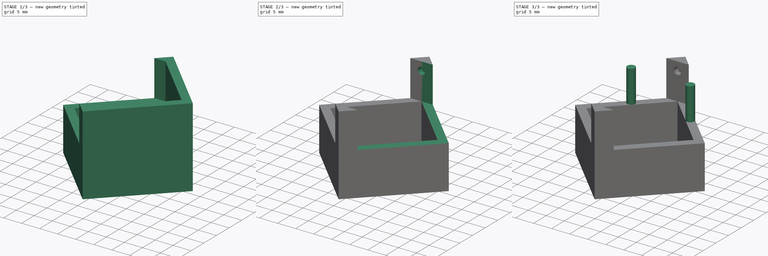
[diagram: build sequence overview — one tinted view per stage of 3, left to right]
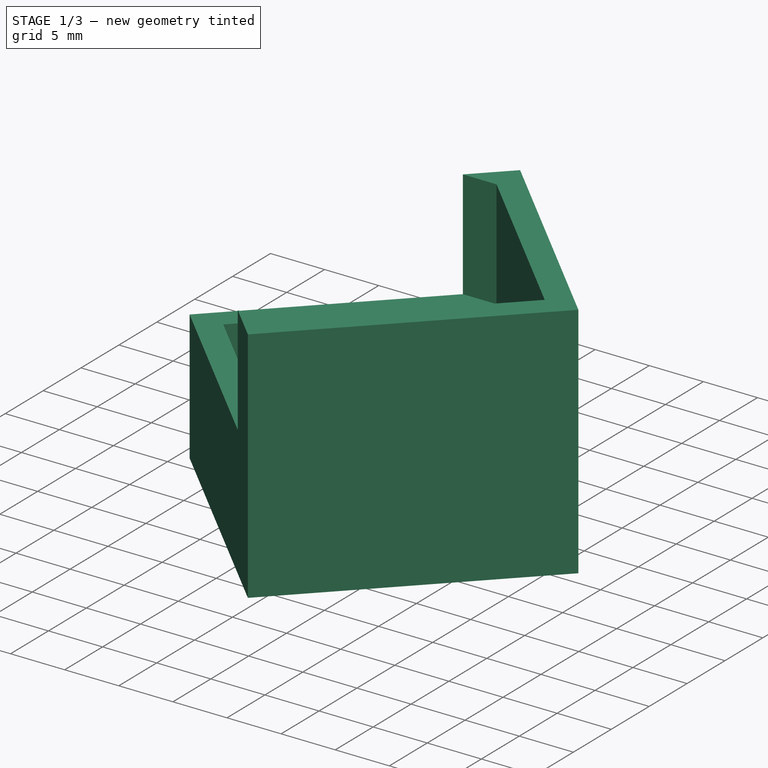
[diagram: stage 1 of 3 — iso view after this stage's code; geometry added in this stage tinted green]
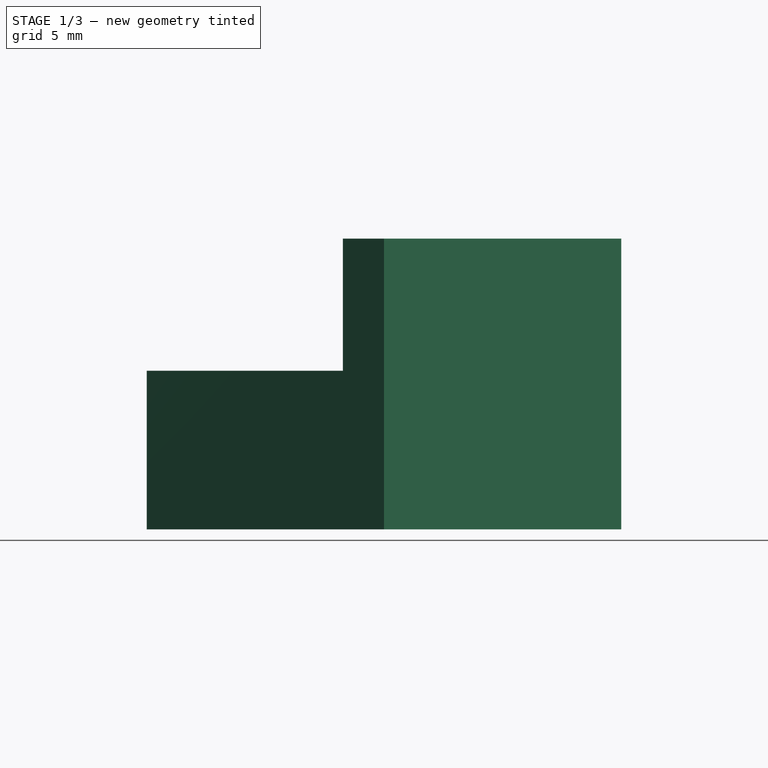
[diagram: stage 1 of 3 — front view after this stage's code; geometry added in this stage tinted green]
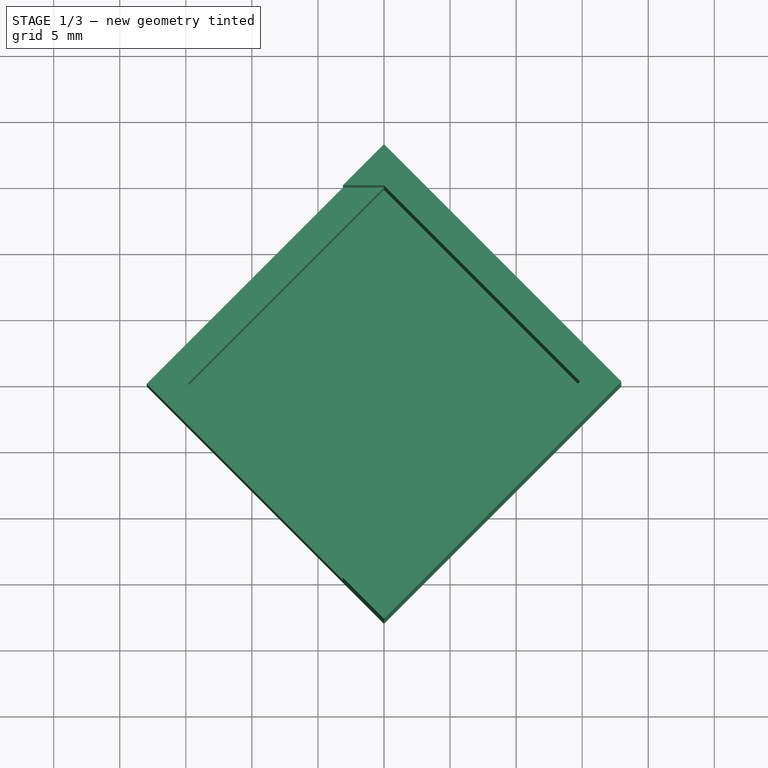
[diagram: stage 1 of 3 — top view after this stage's code; geometry added in this stage tinted green]
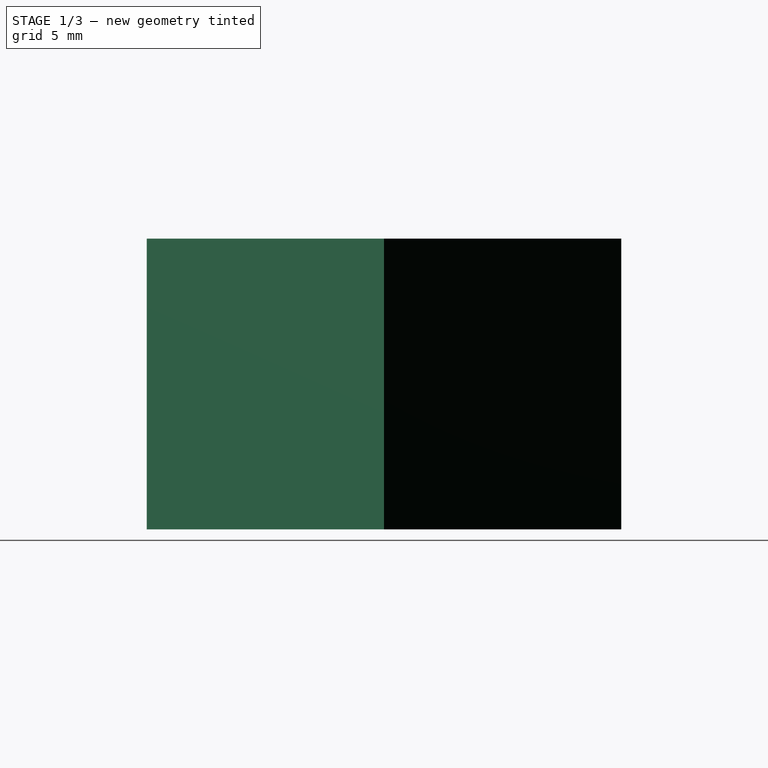
[diagram: stage 1 of 3 — right view after this stage's code; geometry added in this stage tinted green]
FCSTD DOCUMENT  (FreeCAD 0.19R24267 (Git))
Label: body
License: All rights reserved
LicenseURL: http://en.wikipedia.org/wiki/All_rights_reserved
objects: Sketcher::SketchObject×6, PartDesign::Pocket×4, PartDesign::CoordinateSystem×4, PartDesign::Pad×2, PartDesign::Mirrored×2, PartDesign::Body×1
note: 25 computed .brp shape members not serialized (recipe doc carries the construction recipe); baked Part::Feature solids carry a one-line shape summary decoded from their .brp

FEATURE [Sketcher::SketchObject] Sketch
  FullyConstrained = false
  MapMode = 5
  Support = -> [XY_Plane]
  sketch-geometry (7):
    g0: LineSegment StartX=0 StartY=0 StartZ=0 EndX=0 EndY=17.9605 EndZ=0
    g1: LineSegment StartX=0 StartY=0 StartZ=0 EndX=0 EndY=-17.9605 EndZ=0
    g2: LineSegment StartX=0 StartY=-17.9605 StartZ=0 EndX=17.9605 EndY=-1.3181e-12 EndZ=0
    g3: LineSegment StartX=17.9605 StartY=-1.3198e-12 StartZ=0 EndX=7.8018e-12 EndY=17.9605 EndZ=0
    g4: LineSegment StartX=7.8006e-12 StartY=17.9605 StartZ=0 EndX=-17.9605 EndY=5.5387e-12 EndZ=0
    g5: LineSegment StartX=-17.9605 StartY=5.5387e-12 StartZ=0 EndX=0 EndY=-17.9605 EndZ=0
    g6: Circle CenterX=0 CenterY=0 CenterZ=0 NormalX=0 NormalY=0 NormalZ=1 AngleXU=0 Radius=17.9605
  constraints (19):
    c: Coincident(g0,g-1)
    c: Vertical(g0)
    c: Vertical(g1)
    c: Coincident(g2,g3)
    c: Coincident(g3,g4)
    c: Coincident(g4,g5)
    c: Coincident(g5,g2)
    c: Equal(g2,g3)
    c: Equal(g2,g4)
    c: Equal(g2,g5)
    c: PointOnObject(g2,g6)
    c: PointOnObject(g3,g6)
    c: PointOnObject(g4,g6)
    c: PointOnObject(g5,g6)
    c: Coincident(g6,g-1)
    c: Coincident(g5,g1)
    c: Coincident(g1,g-1)
    c: Equal(g1,g0)
    c: Distance(g4) = 25.4
FEATURE [PartDesign::Pad] Pad
  AllowMultiFace = false
  Direction = (1,1,1)
  Length = 22
  Length2 = 100
  Profile = -> Sketch
  Type = 0
FEATURE [Sketcher::SketchObject] Sketch001
  FullyConstrained = false
  MapMode = 5
  Placement = pos=(0,0,22) rot=(0,0,1;0rad)
  Support = -> [Pad]
  sketch-geometry (6):
    g0: LineSegment StartX=0 StartY=14.8492 StartZ=0 EndX=-14.8492 EndY=-1.8e-15 EndZ=0
    g1: LineSegment StartX=-14.8492 StartY=-1.8e-15 StartZ=0 EndX=0 EndY=-14.8492 EndZ=0
    g2: LineSegment StartX=8e-16 StartY=-14.8492 StartZ=0 EndX=14.8492 EndY=0 EndZ=0
    g3: LineSegment StartX=14.8492 StartY=0 StartZ=0 EndX=0 EndY=14.8492 EndZ=0
    g4: Circle CenterX=0 CenterY=0 CenterZ=0 NormalX=0 NormalY=0 NormalZ=1 AngleXU=0 Radius=14.8492
    g5: LineSegment StartX=0 StartY=0 StartZ=0 EndX=0 EndY=14.8492 EndZ=0
  constraints (16):
    c: Coincident(g0,g1)
    c: Coincident(g1,g2)
    c: Coincident(g2,g3)
    c: Coincident(g3,g0)
    c: Equal(g0,g1)
    c: Equal(g0,g2)
    c: Equal(g0,g3)
    c: PointOnObject(g0,g4)
    c: PointOnObject(g1,g4)
    c: PointOnObject(g2,g4)
    c: PointOnObject(g3,g4)
    c: Coincident(g4,g-1)
    c: PointOnObject(g3,g-2)
    c: Coincident(g5,g-1)
    c: Coincident(g0,g5)
    c: Distance(g0) = 21
FEATURE [PartDesign::Pocket] Pocket
  AllowMultiFace = false
  BaseFeature = -> Pad
  Length = 20
  Length2 = 100
  Profile = -> Sketch001
  Type = 0
FEATURE [Sketcher::SketchObject] Sketch002
  ExternalGeometry = -> [Pocket]
  FullyConstrained = false
  MapMode = 5
  Placement = pos=(0,0,22) rot=(0,0,1;0rad)
  Support = -> [Pocket]
  sketch-geometry (7):
    g0: LineSegment StartX=-8e-16 StartY=17.9605 StartZ=0 EndX=0 EndY=14.8492 EndZ=0
    g1: LineSegment StartX=-3.11127 StartY=14.8492 StartZ=0 EndX=-17.9605 EndY=3.6e-15 EndZ=0
    g2: LineSegment StartX=-17.9605 StartY=3.6e-15 StartZ=0 EndX=-3.11127 EndY=-14.8492 EndZ=0
    g3: LineSegment StartX=-14.8492 StartY=9e-16 StartZ=0 EndX=0 EndY=-14.8492 EndZ=0
    g4: LineSegment StartX=-14.8492 StartY=9e-16 StartZ=0 EndX=0 EndY=14.8492 EndZ=0
    g5: LineSegment StartX=0 StartY=14.8492 StartZ=0 EndX=-3.11127 EndY=14.8492 EndZ=0
    g6: LineSegment StartX=0 StartY=-14.8492 StartZ=0 EndX=-3.11127 EndY=-14.8492 EndZ=0
  constraints (16):
    c: Coincident(g0,g-4)
    c: Coincident(g1,g-4)
    c: Coincident(g2,g1)
    c: Coincident(g3,g-5)
    c: Coincident(g4,g3)
    c: Coincident(g4,g0)
    c: Coincident(g5,g4)
    c: Horizontal(g5)
    c: Coincident(g1,g5)
    c: Coincident(g6,g3)
    c: Horizontal(g6)
    c: Coincident(g2,g6)
    c: PointOnObject(g1,g-4)
    c: Coincident(g4,g-6)
    c: PointOnObject(g2,g-7)
    c: Coincident(g3,g-9)
FEATURE [PartDesign::Pocket] Pocket001
  AllowMultiFace = false
  BaseFeature = -> Pocket
  Length = 10
  Length2 = 100
  Profile = -> Sketch002
  Type = 0
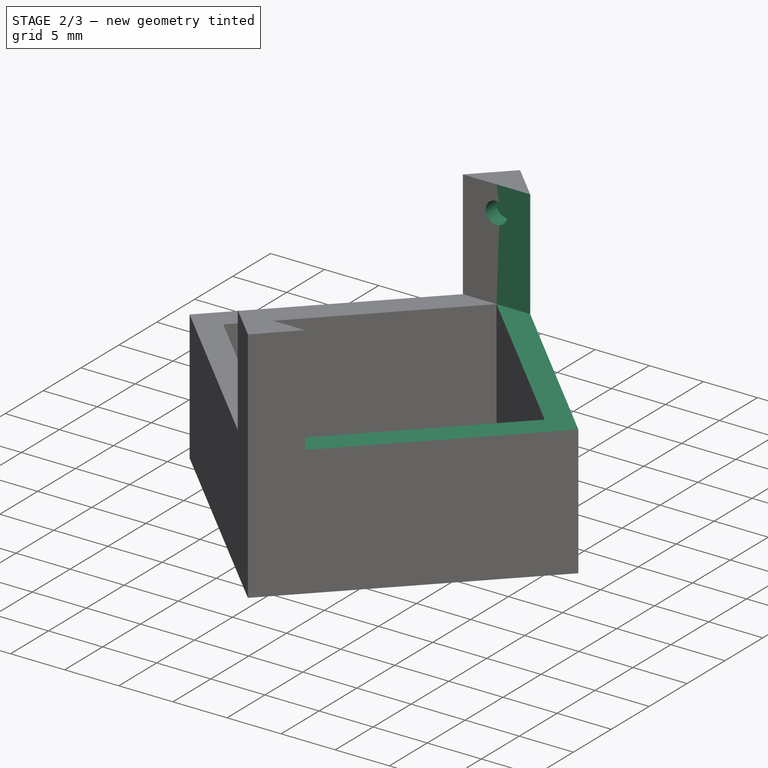
[diagram: stage 2 of 3 — iso view after this stage's code; geometry added in this stage tinted green]
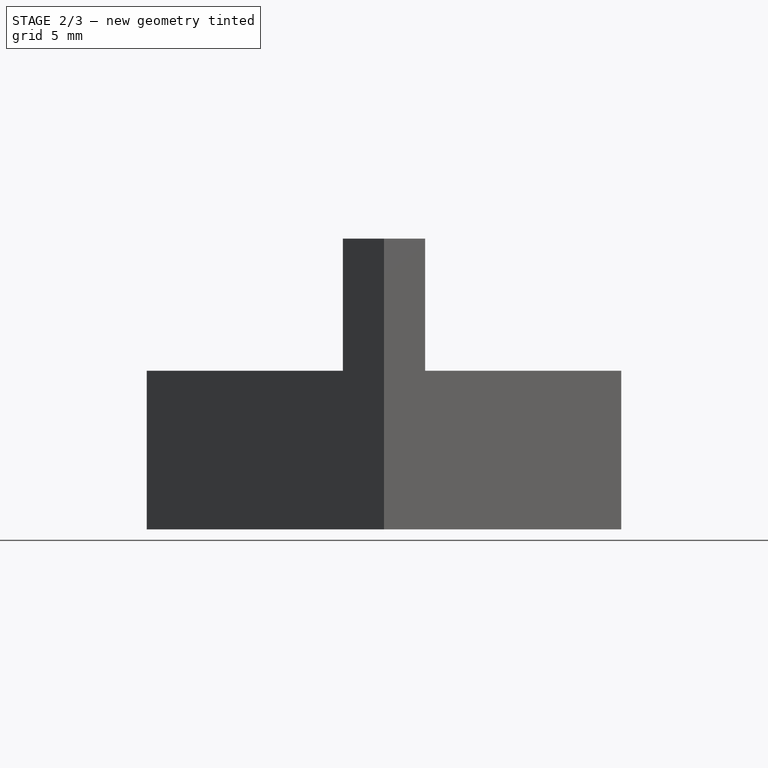
[diagram: stage 2 of 3 — front view after this stage's code; geometry added in this stage tinted green]
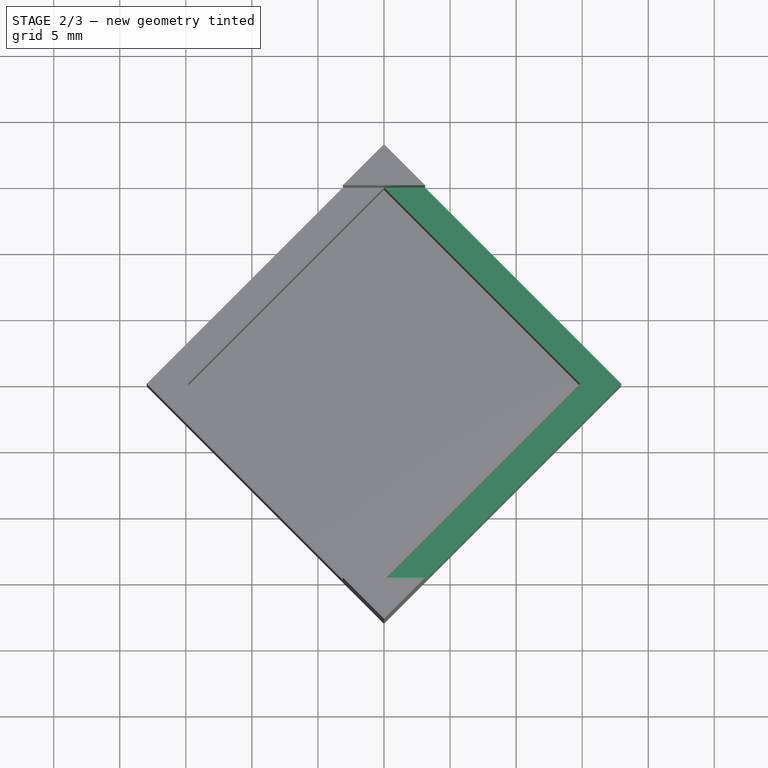
[diagram: stage 2 of 3 — top view after this stage's code; geometry added in this stage tinted green]
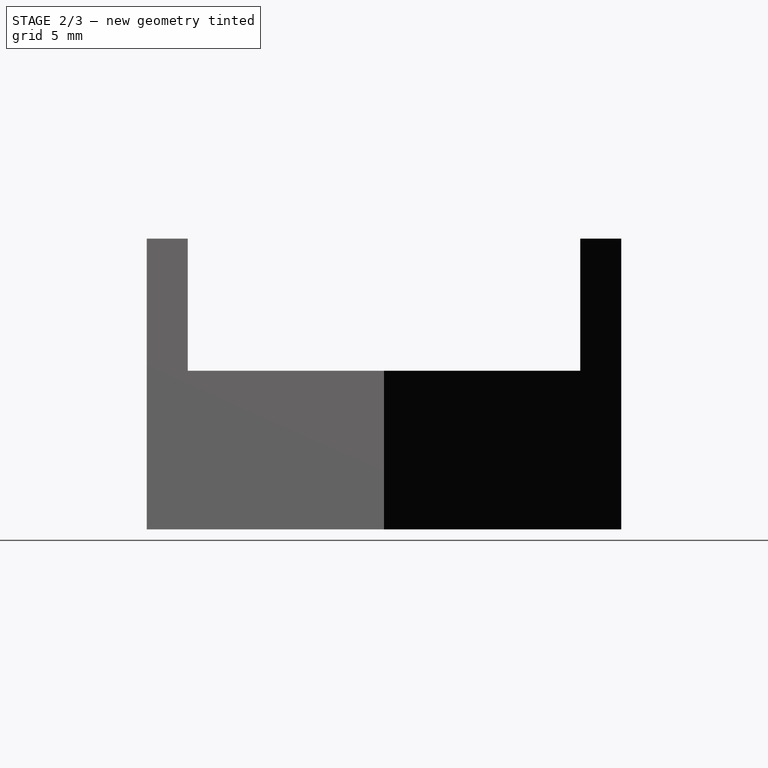
[diagram: stage 2 of 3 — right view after this stage's code; geometry added in this stage tinted green]
FEATURE [PartDesign::Mirrored] Mirrored
  BaseFeature = -> Pocket001
  MirrorPlane = -> YZ_Plane
  Originals = -> [Pocket001]
FEATURE [Sketcher::SketchObject] Sketch003
  FullyConstrained = false
  MapMode = 5
  Placement = pos=(0,0,0) rot=(1,0,0;1.5708rad)
  Support = -> [XZ_Plane]
  sketch-geometry (1):
    g0: Circle CenterX=0 CenterY=19.6223 CenterZ=0 NormalX=0 NormalY=0 NormalZ=1 AngleXU=0 Radius=1
  constraints (2):
    c: PointOnObject(g0,g-2)
    c: Radius(g0) = 1
FEATURE [PartDesign::Pocket] Pocket002
  AllowMultiFace = false
  BaseFeature = -> Mirrored
  Length = 16.25
  Length2 = 16.25
  Profile = -> Sketch003
  Type = 4
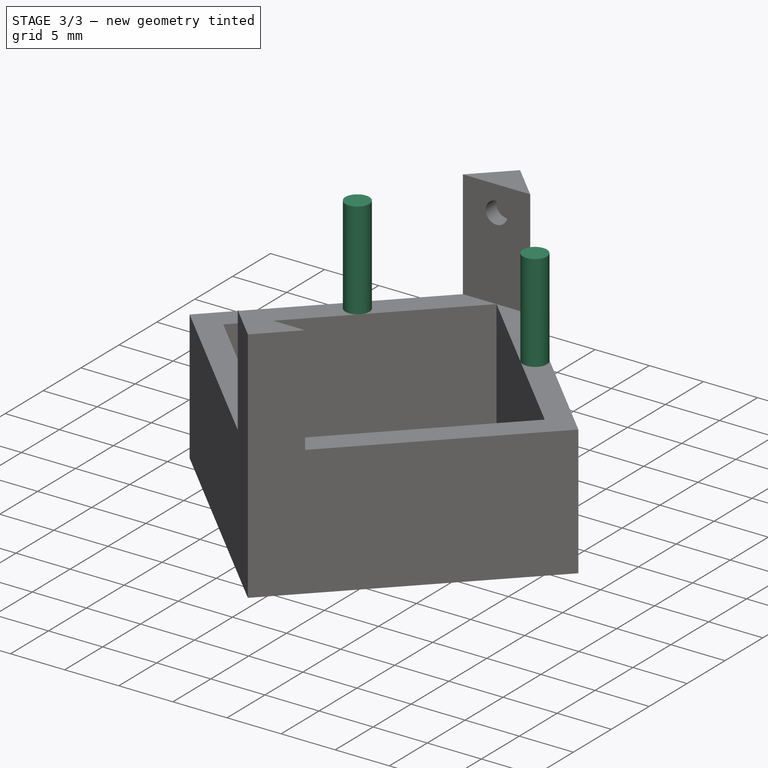
[diagram: stage 3 of 3 — iso view after this stage's code; geometry added in this stage tinted green]
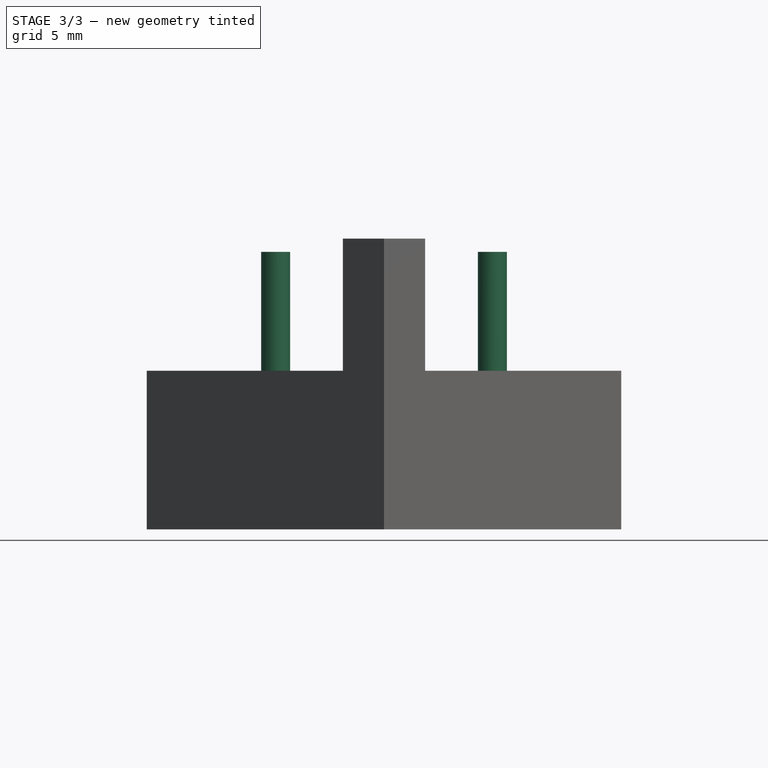
[diagram: stage 3 of 3 — front view after this stage's code; geometry added in this stage tinted green]
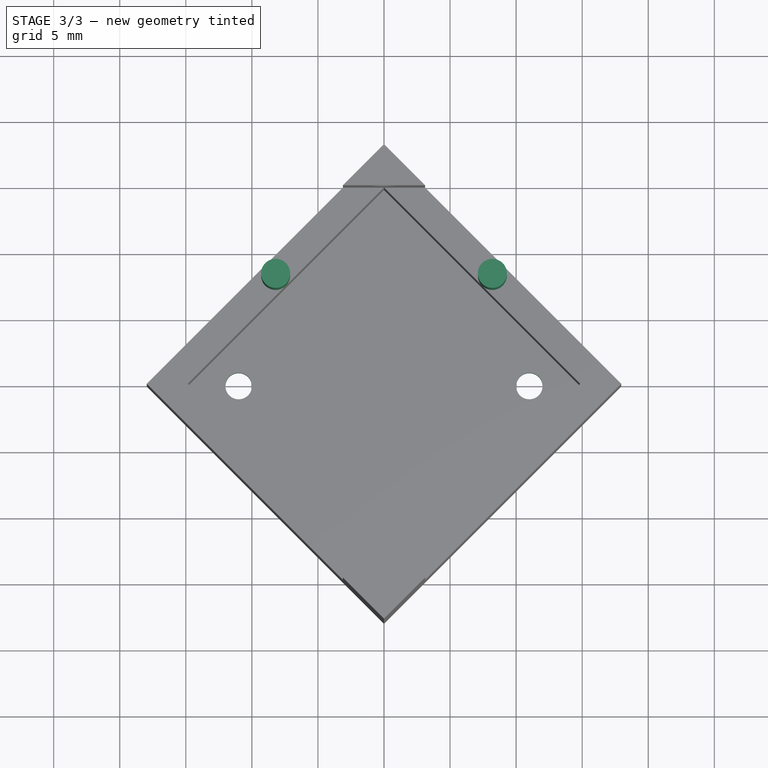
[diagram: stage 3 of 3 — top view after this stage's code; geometry added in this stage tinted green]
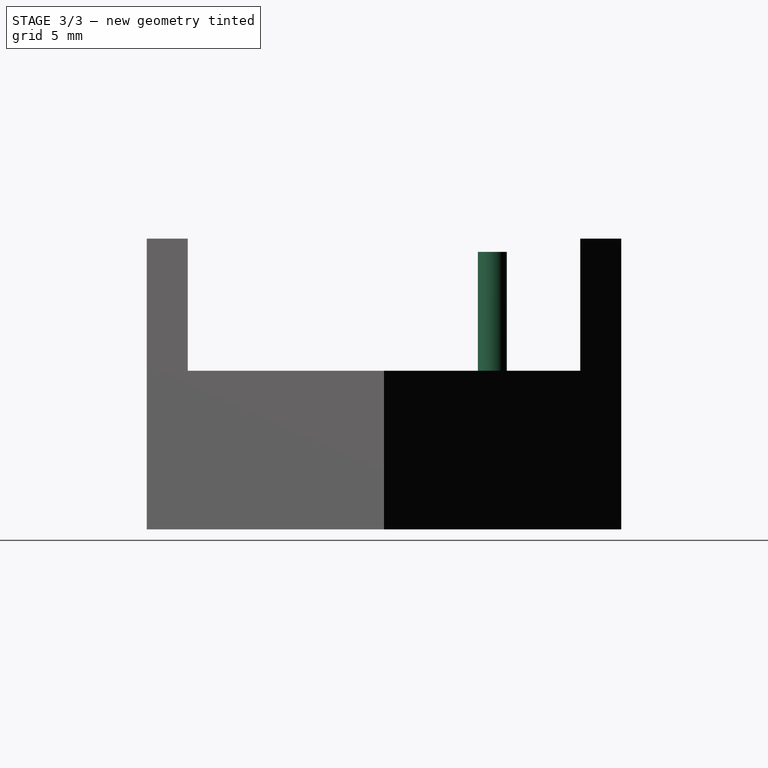
[diagram: stage 3 of 3 — right view after this stage's code; geometry added in this stage tinted green]
FEATURE [Sketcher::SketchObject] Sketch004
  ExternalGeometry = -> [Pocket002]
  FullyConstrained = true
  MapMode = 5
  Placement = pos=(0,0,12) rot=(0,0,1;0rad)
  Support = -> [Pocket002]
  sketch-geometry (3):
    g0: LineSegment StartX=0 StartY=0 StartZ=0 EndX=8.98026 EndY=8.98026 EndZ=0
    g1: Circle CenterX=8.20244 CenterY=8.20244 CenterZ=0 NormalX=0 NormalY=0 NormalZ=1 AngleXU=0 Radius=1.1
    g2: GeomPoint X=7.42462 Y=7.42462 Z=0
  constraints (8):
    c: Coincident(g0,g-1)
    c: Angle(g-1,g0) = 0.785398
    c: PointOnObject(g1,g0)
    c: Tangent(g1,g-3)
    c: PointOnObject(g2,g0)
    c: PointOnObject(g2,g-4)
    c: PointOnObject(g2,g1)
    c: PointOnObject(g0,g-3)
FEATURE [PartDesign::Pad] Pad001
  AllowMultiFace = false
  BaseFeature = -> Pocket002
  Direction = (1,1,1)
  Length = 9
  Length2 = 100
  Profile = -> Sketch004
  Type = 0
FEATURE [PartDesign::Mirrored] Mirrored001
  BaseFeature = -> Pad001
  MirrorPlane = -> YZ_Plane
  Originals = -> [Pad001]
FEATURE [Sketcher::SketchObject] Sketch005
  FullyConstrained = false
  MapMode = 5
  Placement = pos=(0,0,2) rot=(0,0,1;0rad)
  Support = -> [Mirrored001]
  sketch-geometry (3):
    g0: Circle CenterX=-11 CenterY=0 CenterZ=0 NormalX=0 NormalY=0 NormalZ=1 AngleXU=0 Radius=1
    g1: LineSegment StartX=-11 StartY=0 StartZ=0 EndX=0 EndY=0 EndZ=0
    g2: Circle CenterX=11 CenterY=0 CenterZ=0 NormalX=0 NormalY=0 NormalZ=1 AngleXU=0 Radius=1
  constraints (6):
    c: PointOnObject(g0,g-1)
    c: Radius(g0) = 1
    c: Coincident(g1,g0)
    c: Coincident(g1,g-1)
    c: Distance(g1) = 11
    c: Radius(g2) = 1
FEATURE [PartDesign::Pocket] Pocket003
  AllowMultiFace = false
  BaseFeature = -> Mirrored001
  Length = 5
  Length2 = 100
  Profile = -> Sketch005
  Type = 0
FEATURE [PartDesign::CoordinateSystem] Local_CS  label="right_attach"
  AttacherType = Attacher::AttachEngine3D
  MapMode = 5
  Placement = pos=(8.98026,8.98026,0) rot=(0.281085,0.678598,0.678598;2.59356rad)
  Support = -> [Pocket003]
FEATURE [PartDesign::CoordinateSystem] Local_CS001  label="left_attach"
  AttacherType = Attacher::AttachEngine3D
  AttachmentOffset = pos=(0,0,0) rot=(0,1,0;3.14159rad)
  MapMode = 5
  Placement = pos=(-8.98026,-8.98026,0) rot=(0.281085,0.678598,0.678598;2.59356rad)
  Support = -> [Pocket003]
FEATURE [PartDesign::CoordinateSystem] Local_CS002  label="bottom_attach"
  AttacherType = Attacher::AttachEngine3D
  MapMode = 5
  Placement = pos=(8.98026,-8.98026,0) rot=(0.862856,0.357407,0.357407;1.71777rad)
  Support = -> [Pocket003]
FEATURE [PartDesign::CoordinateSystem] Local_CS003  label="top_attach"
  AttacherType = Attacher::AttachEngine3D
  AttachmentOffset = pos=(0,0,0) rot=(0,1,0;3.14159rad)
  MapMode = 5
  Placement = pos=(-8.98026,8.98026,0) rot=(-0.862856,-0.357407,-0.357407;4.56541rad)
  Support = -> [Pocket003]
FEATURE [PartDesign::Body] Body
  Group = -> [Sketch,Pad,Sketch001,Pocket,Sketch002,Pocket001,Mirrored,Sketch003,Pocket002,Sketch004,Pad001,Mirrored001,Sketch005,Pocket003,Local_CS,Local_CS001,Local_CS002,Local_CS003]
  Origin = -> Origin
  Tip = -> Pocket003
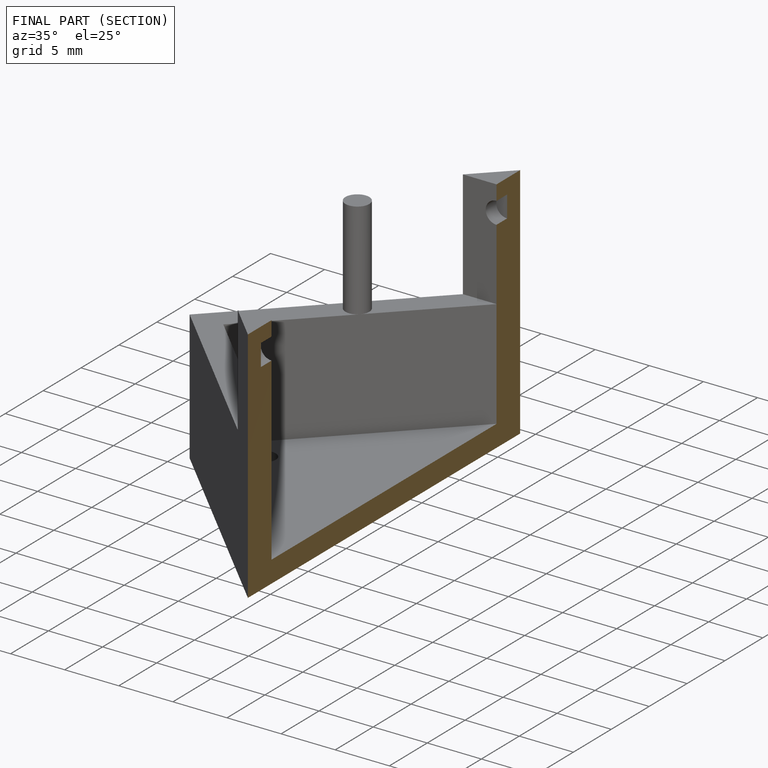
[diagram: finished part — half-section view (interior)]
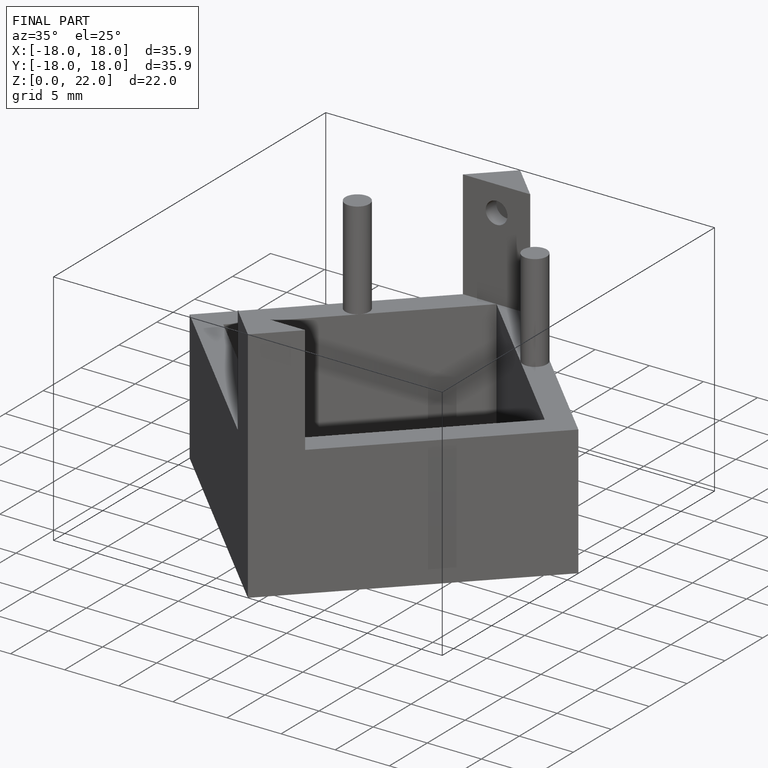
[diagram: finished part — iso view with bounding-box wireframe]
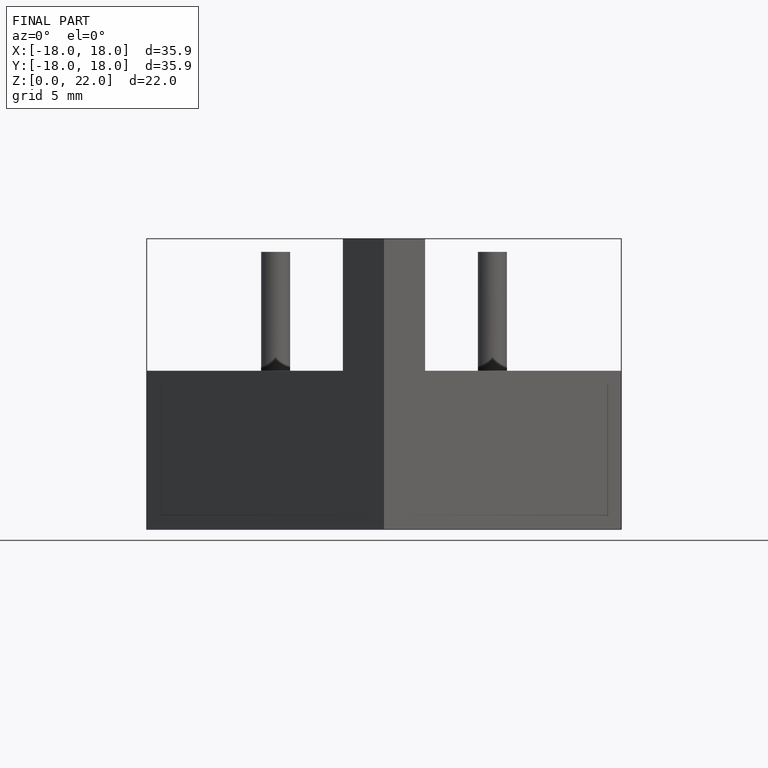
[diagram: finished part — front view with bounding-box wireframe]
